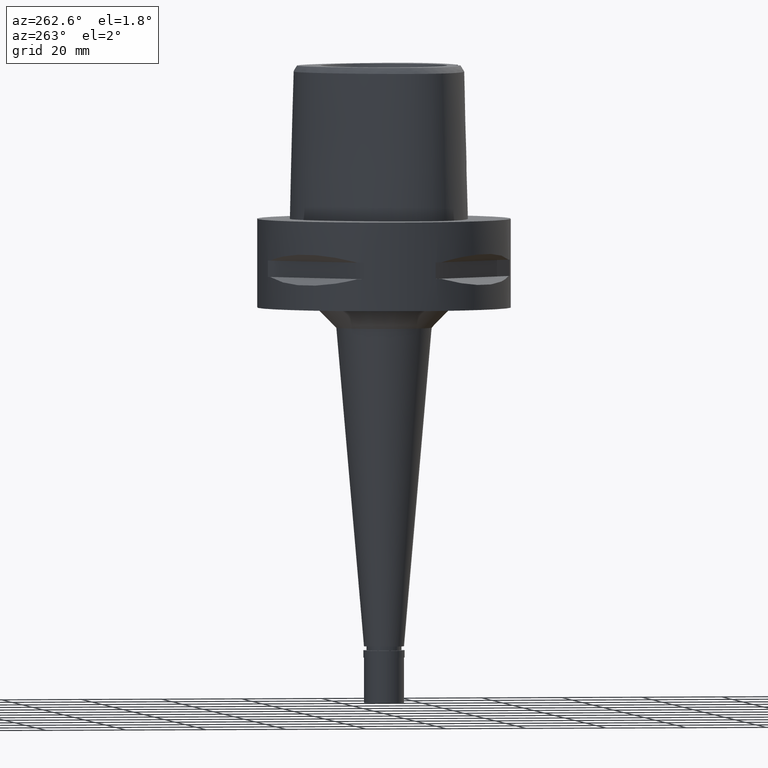
[diagram: clean part render]
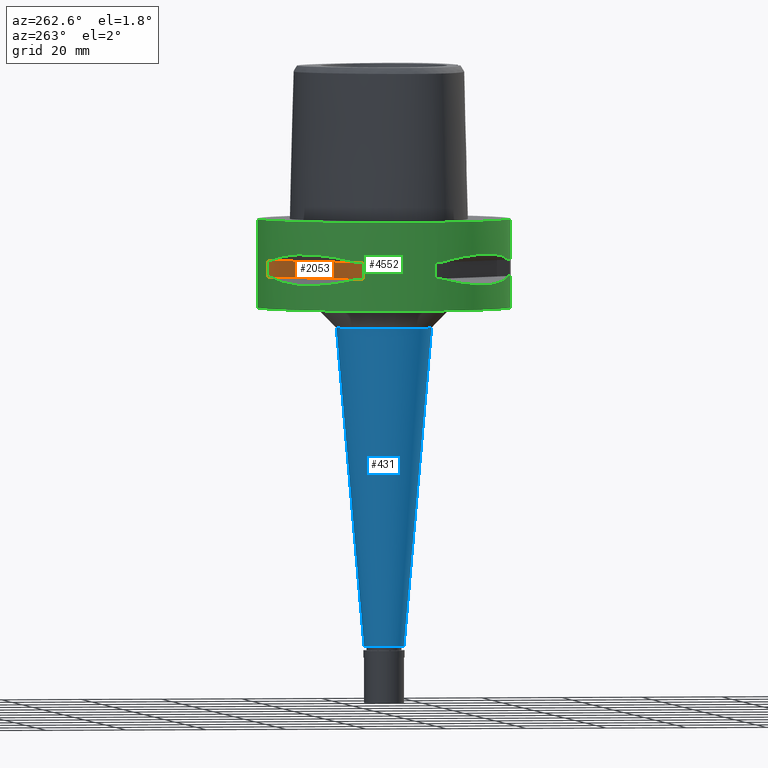
[diagram: same view with three faces highlighted in distinct colors, each labeled with its STEP entity id]
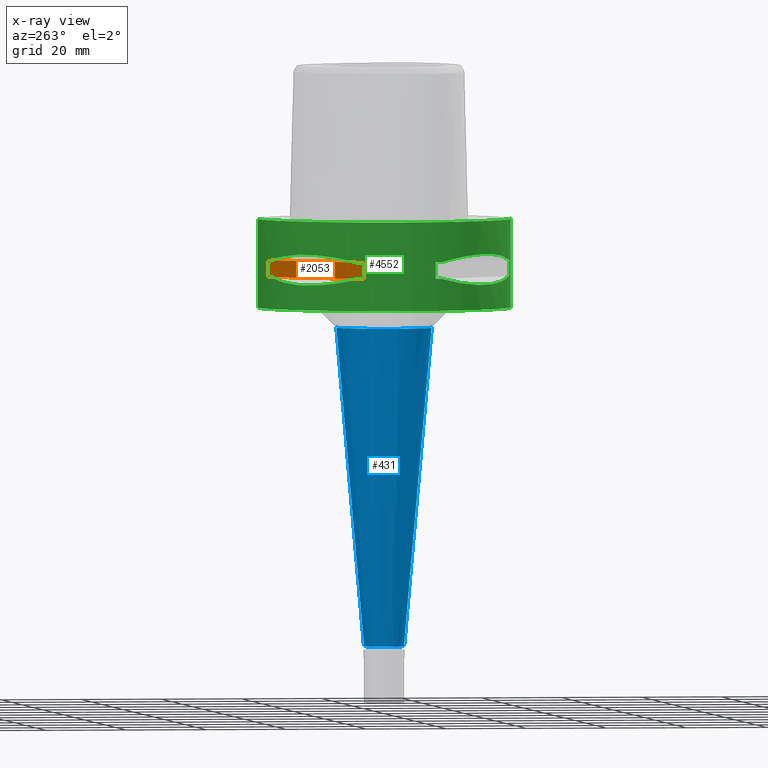
[diagram: x-ray of the same camera — body ghosted, the three highlighted faces saturated]
A machine part, auxiliary view with three faces highlighted in distinct colors.
The next image is the same camera in x-ray (body ghosted, the three faces saturated) — at least one of them is partly hidden behind the body in this view.
Their STEP definitions:

[orange] entity #2053 — the highlighted planar face has unit normal (0.7071, -0.7071, 0).
#38 = CARTESIAN_POINT ( 'NONE',  ( -30.19251670572000279, 8.981198972017999438, -9.950000000000001066 ) ) ;
#59 = LINE ( 'NONE', #38, #2640 ) ;
#178 = AXIS2_PLACEMENT_3D ( 'NONE', #3669, #4728, #4450 ) ;
#492 = VECTOR ( 'NONE', #2361, 1000.000000000000114 ) ;
#566 = VERTEX_POINT ( 'NONE', #1319 ) ;
#843 = CARTESIAN_POINT ( 'NONE',  ( -8.981198972017999438, 30.19251670572000279, -14.05000000000000071 ) ) ;
#1229 = EDGE_CURVE ( 'NONE', #3204, #3739, #59, .T. ) ;
#1319 = CARTESIAN_POINT ( 'NONE',  ( -30.19251670572000279, 8.981198972019999616, -14.05000000000000071 ) ) ;
#1405 = EDGE_LOOP ( 'NONE', ( #3985, #4844, #4096, #2709 ) ) ;
#1409 = LINE ( 'NONE', #2932, #1934 ) ;
#1641 = CARTESIAN_POINT ( 'NONE',  ( -8.981198972019999616, 30.19251670572000279, -9.950000000000001066 ) ) ;
#1743 = FACE_OUTER_BOUND ( 'NONE', #1405, .T. ) ;
#1872 = CARTESIAN_POINT ( 'NONE',  ( -8.981198972017999438, 30.19251670572000279, -9.950000000000001066 ) ) ;
#1934 = VECTOR ( 'NONE', #3288, 1000.000000000000000 ) ;
#1959 = LINE ( 'NONE', #4656, #492 ) ;
#2026 = EDGE_CURVE ( 'NONE', #566, #3011, #1959, .T. ) ;
#2053 = ADVANCED_FACE ( 'NONE', ( #1743 ), #3243, .F. ) ;
#2361 = DIRECTION ( 'NONE',  ( 0.7071067811865474617, 0.7071067811865474617, 0.0000000000000000000 ) ) ;
#2640 = VECTOR ( 'NONE', #3759, 1000.000000000000114 ) ;
#2709 = ORIENTED_EDGE ( 'NONE', *, *, #3097, .T. ) ;
#2744 = CARTESIAN_POINT ( 'NONE',  ( -30.19251670572000279, 8.981198972017999438, -9.950000000000001066 ) ) ;
#2932 = CARTESIAN_POINT ( 'NONE',  ( -30.19251670572000279, 8.981198972017999438, -14.05000000000000071 ) ) ;
#3011 = VERTEX_POINT ( 'NONE', #843 ) ;
#3097 = EDGE_CURVE ( 'NONE', #566, #3204, #1409, .T. ) ;
#3204 = VERTEX_POINT ( 'NONE', #2744 ) ;
#3243 = PLANE ( 'NONE',  #178 ) ;
#3288 = DIRECTION ( 'NONE',  ( 0.0000000000000000000, 0.0000000000000000000, 1.000000000000000000 ) ) ;
#3303 = LINE ( 'NONE', #1872, #4814 ) ;
#3377 = DIRECTION ( 'NONE',  ( 0.0000000000000000000, 0.0000000000000000000, -1.000000000000000000 ) ) ;
#3669 = CARTESIAN_POINT ( 'NONE',  ( -33.72899346260000186, 5.444722215136000187, -9.950000000000001066 ) ) ;
#3739 = VERTEX_POINT ( 'NONE', #1641 ) ;
#3759 = DIRECTION ( 'NONE',  ( 0.7071067811865474617, 0.7071067811865474617, 0.0000000000000000000 ) ) ;
#3985 = ORIENTED_EDGE ( 'NONE', *, *, #1229, .T. ) ;
#4009 = EDGE_CURVE ( 'NONE', #3739, #3011, #3303, .T. ) ;
#4096 = ORIENTED_EDGE ( 'NONE', *, *, #2026, .F. ) ;
#4450 = DIRECTION ( 'NONE',  ( 0.0000000000000000000, 0.0000000000000000000, -1.000000000000000000 ) ) ;
#4656 = CARTESIAN_POINT ( 'NONE',  ( -30.19251670572000279, 8.981198972017999438, -14.05000000000000071 ) ) ;
#4728 = DIRECTION ( 'NONE',  ( 0.7071067811865475727, -0.7071067811865475727, 0.0000000000000000000 ) ) ;
#4814 = VECTOR ( 'NONE', #3377, 1000.000000000000000 ) ;
#4844 = ORIENTED_EDGE ( 'NONE', *, *, #4009, .T. ) ;

[blue] entity #431 — the highlighted conical surface has half-angle 5 deg.
#111 = EDGE_CURVE ( 'NONE', #3089, #2510, #2160, .T. ) ;
#199 = CARTESIAN_POINT ( 'NONE',  ( 0.0000000000000000000, -11.91160441854999874, -27.00000000000000000 ) ) ;
#295 = CARTESIAN_POINT ( 'NONE',  ( 0.0000000000000000000, 0.0000000000000000000, -106.0000000000000000 ) ) ;
#304 = CARTESIAN_POINT ( 'NONE',  ( 0.0000000000000000000, 0.0000000000000000000, -27.00000000000000000 ) ) ;
#370 = DIRECTION ( 'NONE',  ( 0.0000000000000000000, 0.0000000000000000000, 1.000000000000000000 ) ) ;
#431 = ADVANCED_FACE ( 'NONE', ( #3596 ), #2073, .T. ) ;
#526 = CARTESIAN_POINT ( 'NONE',  ( 0.0000000000000000000, 0.0000000000000000000, -66.50000000000000000 ) ) ;
#974 = DIRECTION ( 'NONE',  ( 0.0000000000000000000, 0.08715574274767391716, -0.9961946980917442129 ) ) ;
#1020 = EDGE_CURVE ( 'NONE', #4516, #1181, #1276, .T. ) ;
#1181 = VERTEX_POINT ( 'NONE', #3161 ) ;
#1276 = CIRCLE ( 'NONE', #4495, 11.91160441854999874 ) ;
#1604 = DIRECTION ( 'NONE',  ( 0.0000000000000000000, 1.000000000000000000, 0.0000000000000000000 ) ) ;
#2067 = LINE ( 'NONE', #3995, #4179 ) ;
#2073 = CONICAL_SURFACE ( 'NONE', #4886, 8.455802209273999281, 0.08726646259969973729 ) ;
#2093 = DIRECTION ( 'NONE',  ( 0.0000000000000000000, -0.08715574274767391716, -0.9961946980917442129 ) ) ;
#2118 = EDGE_CURVE ( 'NONE', #1181, #3089, #3301, .T. ) ;
#2158 = CARTESIAN_POINT ( 'NONE',  ( 0.0000000000000000000, 5.000000000000000000, -106.0000000000000000 ) ) ;
#2160 = CIRCLE ( 'NONE', #2958, 5.000000000000000000 ) ;
#2234 = ORIENTED_EDGE ( 'NONE', *, *, #3717, .F. ) ;
#2268 = DIRECTION ( 'NONE',  ( 0.0000000000000000000, 0.0000000000000000000, -1.000000000000000000 ) ) ;
#2510 = VERTEX_POINT ( 'NONE', #2931 ) ;
#2772 = ORIENTED_EDGE ( 'NONE', *, *, #1020, .T. ) ;
#2931 = CARTESIAN_POINT ( 'NONE',  ( 0.0000000000000000000, -5.000000000000000000, -106.0000000000000000 ) ) ;
#2958 = AXIS2_PLACEMENT_3D ( 'NONE', #295, #370, #1604 ) ;
#3089 = VERTEX_POINT ( 'NONE', #2158 ) ;
#3161 = CARTESIAN_POINT ( 'NONE',  ( 0.0000000000000000000, 11.91160441854999874, -27.00000000000000000 ) ) ;
#3190 = ORIENTED_EDGE ( 'NONE', *, *, #111, .T. ) ;
#3290 = VECTOR ( 'NONE', #2093, 1000.000000000000000 ) ;
#3301 = LINE ( 'NONE', #4399, #3290 ) ;
#3596 = FACE_OUTER_BOUND ( 'NONE', #3825, .T. ) ;
#3717 = EDGE_CURVE ( 'NONE', #4516, #2510, #2067, .T. ) ;
#3798 = DIRECTION ( 'NONE',  ( 0.0000000000000000000, -1.000000000000000000, 0.0000000000000000000 ) ) ;
#3825 = EDGE_LOOP ( 'NONE', ( #3190, #2234, #2772, #4121 ) ) ;
#3895 = DIRECTION ( 'NONE',  ( 0.0000000000000000000, 0.0000000000000000000, 1.000000000000000000 ) ) ;
#3995 = CARTESIAN_POINT ( 'NONE',  ( 0.0000000000000000000, -11.91160441854999874, -27.00000000000000000 ) ) ;
#4121 = ORIENTED_EDGE ( 'NONE', *, *, #2118, .T. ) ;
#4179 = VECTOR ( 'NONE', #974, 1000.000000000000000 ) ;
#4399 = CARTESIAN_POINT ( 'NONE',  ( 0.0000000000000000000, 11.91160441854999874, -27.00000000000000000 ) ) ;
#4495 = AXIS2_PLACEMENT_3D ( 'NONE', #304, #2268, #3798 ) ;
#4516 = VERTEX_POINT ( 'NONE', #199 ) ;
#4709 = DIRECTION ( 'NONE',  ( 0.0000000000000000000, 1.000000000000000000, 0.0000000000000000000 ) ) ;
#4886 = AXIS2_PLACEMENT_3D ( 'NONE', #526, #3895, #4709 ) ;

[green] entity #4552 — the highlighted cylindrical surface (partial cylindrical patch) has radius 31.5 mm, axis along (0, 0, -1).
#44 = B_SPLINE_CURVE_WITH_KNOTS ( 'NONE', 3,
 ( #1296, #3969, #2468, #1671, #3569, #3599, #4766, #4001, #2101, #211, #4789, #1725, #608, #1349, #2873, #4410, #2123, #3647, #2177, #2547, #4460, #3307, #4841, #1025 ),
 .UNSPECIFIED., .F., .F.,
 ( 4, 1, 1, 1, 1, 1, 2, 2, 2, 1, 1, 1, 1, 1, 2, 2, 4 ),
 ( 0.0000000000000000000, 0.1249999999999950040, 0.1874999999999924505, 0.2187499999999911737, 0.2343749999999902855, 0.2421874999999899802, 0.2460937499999900080, 0.2499999999999900080, 0.4999999999999917843, 0.6249999999999925615, 0.6874999999999925615, 0.7187499999999924505, 0.7343749999999926725, 0.7421874999999927836, 0.7460937499999928946, 0.7499999999999931166, 1.000000000000000000 ),
 .UNSPECIFIED. ) ;
#55 = EDGE_CURVE ( 'NONE', #706, #1981, #1108, .T. ) ;
#62 = ORIENTED_EDGE ( 'NONE', *, *, #1883, .T. ) ;
#95 = DIRECTION ( 'NONE',  ( 0.0000000000000000000, -1.000000000000000000, 0.0000000000000000000 ) ) ;
#119 = CARTESIAN_POINT ( 'NONE',  ( -18.59229662067887290, 25.43927894889657182, -8.371338736651580348 ) ) ;
#142 = CIRCLE ( 'NONE', #1738, 31.50000000000000711 ) ;
#165 = DIRECTION ( 'NONE',  ( -0.2851174276831918153, 0.9584925938322735872, 0.0000000000000000000 ) ) ;
#172 = CARTESIAN_POINT ( 'NONE',  ( -23.89673728051778312, 20.65093790439090427, -8.160641950982711279 ) ) ;
#180 = CARTESIAN_POINT ( 'NONE',  ( 0.0000000000000000000, 1.295860010517999870E-14, -14.05000000000000071 ) ) ;
#185 = CARTESIAN_POINT ( 'NONE',  ( -26.01217882833174500, -17.76952662674572281, -8.473347783733409244 ) ) ;
#211 = CARTESIAN_POINT ( 'NONE',  ( -16.89910283486545950, 26.58330558444438907, -15.40446471307224030 ) ) ;
#255 = DIRECTION ( 'NONE',  ( -0.9584925938322735872, -0.2851174276831918153, 0.0000000000000000000 ) ) ;
#268 = CARTESIAN_POINT ( 'NONE',  ( 0.0000000000000000000, 1.295860010517999870E-14, -9.950000000000001066 ) ) ;
#319 = CARTESIAN_POINT ( 'NONE',  ( -14.89252659053665440, -27.86285265927818600, -15.10765629750852135 ) ) ;
#391 = EDGE_CURVE ( 'NONE', #2687, #2218, #1761, .T. ) ;
#432 = CARTESIAN_POINT ( 'NONE',  ( 0.0000000000000000000, 1.295860010517999870E-14, -14.05000000000000071 ) ) ;
#444 = DIRECTION ( 'NONE',  ( 0.0000000000000000000, 0.0000000000000000000, -1.000000000000000000 ) ) ;
#483 = AXIS2_PLACEMENT_3D ( 'NONE', #268, #2553, #3359 ) ;
#490 = ORIENTED_EDGE ( 'NONE', *, *, #2955, .T. ) ;
#512 = VERTEX_POINT ( 'NONE', #3966 ) ;
#517 = ORIENTED_EDGE ( 'NONE', *, *, #3293, .F. ) ;
#520 = VERTEX_POINT ( 'NONE', #1243 ) ;
#554 = CARTESIAN_POINT ( 'NONE',  ( -13.25636937906713442, -28.62019653467846680, -9.251117744577344482 ) ) ;
#566 = VERTEX_POINT ( 'NONE', #1319 ) ;
#571 = FACE_BOUND ( 'NONE', #2273, .T. ) ;
#584 = LINE ( 'NONE', #2793, #2571 ) ;
#598 = CARTESIAN_POINT ( 'NONE',  ( 0.0000000000000000000, 1.295860010517999870E-14, 5.814999999999999503 ) ) ;
#608 = CARTESIAN_POINT ( 'NONE',  ( -23.08532645888017854, 21.46242677077873751, -15.83938991065184076 ) ) ;
#625 = CARTESIAN_POINT ( 'NONE',  ( 0.0000000000000000000, 1.295860010517999870E-14, -9.950000000000001066 ) ) ;
#630 = CARTESIAN_POINT ( 'NONE',  ( -16.03138450079663002, -27.11872488588888430, -8.731195798918143680 ) ) ;
#631 = EDGE_CURVE ( 'NONE', #3789, #3204, #3678, .T. ) ;
#654 = VECTOR ( 'NONE', #444, 1000.000000000000000 ) ;
#671 = CARTESIAN_POINT ( 'NONE',  ( -16.98999780422095540, -26.52527364208602734, -15.41788098766330783 ) ) ;
#706 = VERTEX_POINT ( 'NONE', #4162 ) ;
#792 = ORIENTED_EDGE ( 'NONE', *, *, #3097, .F. ) ;
#843 = CARTESIAN_POINT ( 'NONE',  ( -8.981198972017999438, 30.19251670572000279, -14.05000000000000071 ) ) ;
#890 = CARTESIAN_POINT ( 'NONE',  ( -29.71690375017999841, 10.44775724750000023, -9.949999999998999201 ) ) ;
#899 = CARTESIAN_POINT ( 'NONE',  ( -18.86897208070082144, -25.32725744469107809, -8.304119040671400498 ) ) ;
#901 = EDGE_CURVE ( 'NONE', #1394, #512, #2246, .T. ) ;
#910 = ORIENTED_EDGE ( 'NONE', *, *, #2670, .T. ) ;
#914 = EDGE_LOOP ( 'NONE', ( #2917, #792, #2797, #2047, #910, #1856, #3668, #2969 ) ) ;
#941 = CARTESIAN_POINT ( 'NONE',  ( -20.18579225689817847, 24.23018836742653903, -8.214406030204504106 ) ) ;
#953 = CARTESIAN_POINT ( 'NONE',  ( -26.52527364208554062, -16.98999780422374073, -8.582119012334473496 ) ) ;
#967 = CARTESIAN_POINT ( 'NONE',  ( -26.58330558444476921, 16.89910283486714704, -8.595535286925606755 ) ) ;
#968 = AXIS2_PLACEMENT_3D ( 'NONE', #625, #3773, #255 ) ;
#969 = CIRCLE ( 'NONE', #1443, 31.50000000000000000 ) ;
#973 = VECTOR ( 'NONE', #1514, 1000.000000000000000 ) ;
#980 = CARTESIAN_POINT ( 'NONE',  ( -25.43927894889004548, -18.59229662069481037, -8.371338736647741641 ) ) ;
#989 = VERTEX_POINT ( 'NONE', #3020 ) ;
#1004 = CARTESIAN_POINT ( 'NONE',  ( -11.58970337496160852, -29.31542262584106595, -9.647706428324706707 ) ) ;
#1025 = CARTESIAN_POINT ( 'NONE',  ( -29.71690375017999841, 10.44775724750000023, -14.05000000000000071 ) ) ;
#1108 = B_SPLINE_CURVE_WITH_KNOTS ( 'NONE', 3,
 ( #3365, #1483, #4876, #4445, #1792, #1864, #2632, #3319, #4925, #3009, #1460, #4852, #1411, #4113, #1812, #2934, #2210, #3340, #1389, #671, #3733, #319, #4831, #2988 ),
 .UNSPECIFIED., .F., .F.,
 ( 4, 1, 1, 1, 1, 1, 2, 2, 2, 1, 1, 1, 1, 1, 2, 2, 4 ),
 ( 0.0000000000000000000, 0.1250000000000055511, 0.1875000000000083267, 0.2187500000000097977, 0.2343750000000106304, 0.2421875000000108247, 0.2460937500000108524, 0.2500000000000108802, 0.5000000000000087708, 0.6250000000000075495, 0.6875000000000071054, 0.7187500000000067724, 0.7343750000000066613, 0.7421875000000065503, 0.7460937500000062172, 0.7500000000000059952, 1.000000000000000000 ),
 .UNSPECIFIED. ) ;
#1144 = DIRECTION ( 'NONE',  ( 0.0000000000000000000, 0.0000000000000000000, -1.000000000000000000 ) ) ;
#1163 = DIRECTION ( 'NONE',  ( 0.0000000000000000000, -1.000000000000000000, 0.0000000000000000000 ) ) ;
#1214 = CARTESIAN_POINT ( 'NONE',  ( 0.0000000000000000000, 1.295860010517999870E-14, 0.0000000000000000000 ) ) ;
#1235 = CARTESIAN_POINT ( 'NONE',  ( -14.89252659059299688, 27.86285265925913279, -8.892343702474967415 ) ) ;
#1243 = CARTESIAN_POINT ( 'NONE',  ( 0.0000000000000000000, 31.50000000000000000, 0.0000000000000000000 ) ) ;
#1259 = CARTESIAN_POINT ( 'NONE',  ( -28.62019653469816305, 13.25636937901108503, -9.251117744592180614 ) ) ;
#1260 = ORIENTED_EDGE ( 'NONE', *, *, #4192, .T. ) ;
#1269 = CARTESIAN_POINT ( 'NONE',  ( -26.48642424310302701, -17.05047092244751283, -8.573291165920753798 ) ) ;
#1296 = CARTESIAN_POINT ( 'NONE',  ( -10.44775724750000023, 29.71690375017999841, -14.05000000000000071 ) ) ;
#1319 = CARTESIAN_POINT ( 'NONE',  ( -30.19251670572000279, 8.981198972019999616, -14.05000000000000071 ) ) ;
#1321 = CARTESIAN_POINT ( 'NONE',  ( -16.70616724746269810, -26.70521063584483201, -8.624533381820137734 ) ) ;
#1349 = CARTESIAN_POINT ( 'NONE',  ( -24.23018836745279714, 20.18579225685798306, -15.78559396978850415 ) ) ;
#1389 = CARTESIAN_POINT ( 'NONE',  ( -17.05047092244293694, -26.48642424310493837, -15.42670883407686588 ) ) ;
#1394 = VERTEX_POINT ( 'NONE', #1776 ) ;
#1409 = LINE ( 'NONE', #2932, #1934 ) ;
#1411 = CARTESIAN_POINT ( 'NONE',  ( -21.46242677078364025, -23.08532645888299939, -15.83938991065501867 ) ) ;
#1443 = AXIS2_PLACEMENT_3D ( 'NONE', #1214, #2385, #1163 ) ;
#1460 = CARTESIAN_POINT ( 'NONE',  ( -25.32725744469575702, -18.86897208070564247, -15.69588095933118943 ) ) ;
#1483 = CARTESIAN_POINT ( 'NONE',  ( -29.31542262584746794, -11.58970337494326941, -14.35229357166913999 ) ) ;
#1493 = CARTESIAN_POINT ( 'NONE',  ( 0.0000000000000000000, 1.295860010517999870E-14, -22.00000000000000000 ) ) ;
#1514 = DIRECTION ( 'NONE',  ( 0.0000000000000000000, 0.0000000000000000000, -1.000000000000000000 ) ) ;
#1527 = CIRCLE ( 'NONE', #2167, 31.50000000000000000 ) ;
#1548 = DIRECTION ( 'NONE',  ( -0.2851174276831918153, -0.9584925938322735872, 0.0000000000000000000 ) ) ;
#1634 = ORIENTED_EDGE ( 'NONE', *, *, #391, .T. ) ;
#1637 = CARTESIAN_POINT ( 'NONE',  ( -17.14106442935275254, 26.42800887047274827, -8.560154497612680657 ) ) ;
#1641 = CARTESIAN_POINT ( 'NONE',  ( -8.981198972019999616, 30.19251670572000279, -9.950000000000001066 ) ) ;
#1647 = CARTESIAN_POINT ( 'NONE',  ( -20.65093790440084831, -23.89673728049350743, -8.160641950988564375 ) ) ;
#1671 = CARTESIAN_POINT ( 'NONE',  ( -15.11986997308662595, 27.64634172018752523, -15.11207862403231239 ) ) ;
#1695 = DIRECTION ( 'NONE',  ( 0.0000000000000000000, 0.0000000000000000000, -1.000000000000000000 ) ) ;
#1712 = ORIENTED_EDGE ( 'NONE', *, *, #4699, .T. ) ;
#1725 = CARTESIAN_POINT ( 'NONE',  ( -20.65093790435807364, 23.89673728056094859, -15.83935804902020550 ) ) ;
#1738 = AXIS2_PLACEMENT_3D ( 'NONE', #4673, #3930, #4718 ) ;
#1752 = CARTESIAN_POINT ( 'NONE',  ( -23.08532645886081980, -21.46242677081444228, -8.160610089340176287 ) ) ;
#1761 = CIRCLE ( 'NONE', #483, 31.50000000000000711 ) ;
#1776 = CARTESIAN_POINT ( 'NONE',  ( -30.19251670572000279, -8.981198972019999616, -9.950000000000001066 ) ) ;
#1792 = CARTESIAN_POINT ( 'NONE',  ( -27.11872488589304453, -16.03138450078185429, -15.26880420107623237 ) ) ;
#1812 = CARTESIAN_POINT ( 'NONE',  ( -18.59229662065495958, -25.43927894891979946, -15.62866126334684580 ) ) ;
#1828 = EDGE_CURVE ( 'NONE', #2447, #2935, #1527, .T. ) ;
#1842 = VERTEX_POINT ( 'NONE', #1942 ) ;
#1856 = ORIENTED_EDGE ( 'NONE', *, *, #4009, .F. ) ;
#1864 = CARTESIAN_POINT ( 'NONE',  ( -26.84474411198783628, -16.48208282228858224, -15.34094883777952667 ) ) ;
#1865 = ORIENTED_EDGE ( 'NONE', *, *, #3295, .F. ) ;
#1872 = CARTESIAN_POINT ( 'NONE',  ( -8.981198972017999438, 30.19251670572000279, -9.950000000000001066 ) ) ;
#1883 = EDGE_CURVE ( 'NONE', #989, #520, #969, .T. ) ;
#1889 = ORIENTED_EDGE ( 'NONE', *, *, #1828, .T. ) ;
#1916 = CARTESIAN_POINT ( 'NONE',  ( 0.0000000000000000000, 31.50000000000000000, 0.0000000000000000000 ) ) ;
#1934 = VECTOR ( 'NONE', #3288, 1000.000000000000000 ) ;
#1942 = CARTESIAN_POINT ( 'NONE',  ( -29.71690375017999841, -10.44775724750000023, -9.949999999998999201 ) ) ;
#1965 = AXIS2_PLACEMENT_3D ( 'NONE', #2804, #2751, #165 ) ;
#1981 = VERTEX_POINT ( 'NONE', #2758 ) ;
#2047 = ORIENTED_EDGE ( 'NONE', *, *, #3353, .F. ) ;
#2062 = EDGE_LOOP ( 'NONE', ( #1889, #3000, #62, #3162 ) ) ;
#2091 = CYLINDRICAL_SURFACE ( 'NONE', #3419, 31.50000000000000000 ) ;
#2101 = CARTESIAN_POINT ( 'NONE',  ( -16.86571563436579169, 26.60451452154777030, -15.39949295785988426 ) ) ;
#2117 = DIRECTION ( 'NONE',  ( -0.9584925938322735872, 0.2851174276831918153, 0.0000000000000000000 ) ) ;
#2123 = CARTESIAN_POINT ( 'NONE',  ( -26.29071741523646111, 17.35163608579689409, -15.46976201925398087 ) ) ;
#2150 = DIRECTION ( 'NONE',  ( 0.0000000000000000000, 0.0000000000000000000, 1.000000000000000000 ) ) ;
#2167 = AXIS2_PLACEMENT_3D ( 'NONE', #1493, #2648, #4177 ) ;
#2177 = CARTESIAN_POINT ( 'NONE',  ( -26.48642424310458665, 17.05047092244234008, -15.42670883407647509 ) ) ;
#2210 = CARTESIAN_POINT ( 'NONE',  ( -17.35163608579889072, -26.29071741523761929, -15.46976201925527761 ) ) ;
#2218 = VERTEX_POINT ( 'NONE', #2895 ) ;
#2246 = LINE ( 'NONE', #2647, #4726 ) ;
#2267 = LINE ( 'NONE', #1916, #654 ) ;
#2271 = EDGE_CURVE ( 'NONE', #989, #2935, #2970, .T. ) ;
#2273 = EDGE_LOOP ( 'NONE', ( #1634, #517, #490, #3660, #1712, #2576, #1260, #1865 ) ) ;
#2299 = DIRECTION ( 'NONE',  ( 0.0000000000000000000, 0.0000000000000000000, -1.000000000000000000 ) ) ;
#2301 = B_SPLINE_CURVE_WITH_KNOTS ( 'NONE', 3,
 ( #3623, #1004, #554, #4047, #630, #4383, #1321, #4711, #3677, #4331, #899, #1647, #1752, #3173, #980, #185, #3227, #3278, #1269, #953, #2497, #2822, #2420, #4026 ),
 .UNSPECIFIED., .F., .F.,
 ( 4, 1, 1, 1, 1, 1, 2, 2, 2, 1, 1, 1, 1, 1, 2, 2, 4 ),
 ( 0.0000000000000000000, 0.1250000000000015266, 0.1875000000000022760, 0.2187500000000025813, 0.2343750000000025813, 0.2421875000000026923, 0.2460937500000026368, 0.2500000000000026090, 0.4999999999999997780, 0.6249999999999986677, 0.6874999999999982236, 0.7187499999999980016, 0.7343749999999980016, 0.7421874999999980016, 0.7460937499999977796, 0.7499999999999975575, 1.000000000000000000 ),
 .UNSPECIFIED. ) ;
#2344 = DIRECTION ( 'NONE',  ( -0.3316748332540863653, 0.9433937698468619626, 0.0000000000000000000 ) ) ;
#2381 = CARTESIAN_POINT ( 'NONE',  ( -25.32725744471396112, 18.86897208069228071, -8.304119040665543849 ) ) ;
#2385 = DIRECTION ( 'NONE',  ( 0.0000000000000000000, 0.0000000000000000000, -1.000000000000000000 ) ) ;
#2411 = CARTESIAN_POINT ( 'NONE',  ( -12.73197616790216635, 28.91382665368218952, -9.345326382454333114 ) ) ;
#2420 = CARTESIAN_POINT ( 'NONE',  ( -28.91382665368931626, -12.73197616788186792, -9.345326382459711922 ) ) ;
#2447 = VERTEX_POINT ( 'NONE', #4119 ) ;
#2459 = FACE_OUTER_BOUND ( 'NONE', #2062, .T. ) ;
#2468 = CARTESIAN_POINT ( 'NONE',  ( -13.25636937902232404, 28.62019653469382163, -14.74888225540932751 ) ) ;
#2477 = CIRCLE ( 'NONE', #968, 31.50000000000001776 ) ;
#2483 = CIRCLE ( 'NONE', #4579, 31.50000000000000711 ) ;
#2497 = CARTESIAN_POINT ( 'NONE',  ( -26.54368690921742413, -16.96123479565023828, -8.586344276584748414 ) ) ;
#2547 = CARTESIAN_POINT ( 'NONE',  ( -26.52527364208584615, 16.98999780422065342, -15.41788098766309467 ) ) ;
#2551 = VERTEX_POINT ( 'NONE', #4520 ) ;
#2553 = DIRECTION ( 'NONE',  ( 0.0000000000000000000, 0.0000000000000000000, 1.000000000000000000 ) ) ;
#2571 = VECTOR ( 'NONE', #2150, 1000.000000000000000 ) ;
#2576 = ORIENTED_EDGE ( 'NONE', *, *, #901, .F. ) ;
#2632 = CARTESIAN_POINT ( 'NONE',  ( -26.70521063584532229, -16.70616724745790549, -15.37546661817682292 ) ) ;
#2647 = CARTESIAN_POINT ( 'NONE',  ( -30.19251670572000279, -8.981198972017999438, -9.950000000000001066 ) ) ;
#2648 = DIRECTION ( 'NONE',  ( 0.0000000000000000000, 0.0000000000000000000, 1.000000000000000000 ) ) ;
#2667 = CARTESIAN_POINT ( 'NONE',  ( 0.0000000000000000000, -31.50000000000000000, 0.0000000000000000000 ) ) ;
#2670 = EDGE_CURVE ( 'NONE', #2861, #3011, #2483, .T. ) ;
#2687 = VERTEX_POINT ( 'NONE', #3057 ) ;
#2744 = CARTESIAN_POINT ( 'NONE',  ( -30.19251670572000279, 8.981198972017999438, -9.950000000000001066 ) ) ;
#2751 = DIRECTION ( 'NONE',  ( 0.0000000000000000000, 0.0000000000000000000, 1.000000000000000000 ) ) ;
#2756 = CARTESIAN_POINT ( 'NONE',  ( -17.35163608580701222, 26.29071741523101480, -8.530237980742814585 ) ) ;
#2758 = CARTESIAN_POINT ( 'NONE',  ( -10.44775724750000023, -29.71690375017999841, -14.05000000000000071 ) ) ;
#2759 = B_SPLINE_CURVE_WITH_KNOTS ( 'NONE', 3,
 ( #890, #3164, #1259, #3189, #3537, #4778, #3613, #4700, #2781, #967, #2381, #172, #4287, #941, #119, #3241, #2756, #1637, #4317, #4017, #2837, #1235, #2411, #3935 ),
 .UNSPECIFIED., .F., .F.,
 ( 4, 1, 1, 1, 1, 1, 2, 2, 2, 1, 1, 1, 1, 1, 2, 2, 4 ),
 ( 0.0000000000000000000, 0.1250000000000042466, 0.1875000000000063838, 0.2187500000000076050, 0.2343750000000082712, 0.2421875000000086875, 0.2460937500000088818, 0.2500000000000091038, 0.4999999999999984457, 0.6249999999999930056, 0.6874999999999904521, 0.7187499999999892308, 0.7343749999999887867, 0.7421874999999884537, 0.7460937499999882316, 0.7499999999999880096, 1.000000000000000000 ),
 .UNSPECIFIED. ) ;
#2778 = VERTEX_POINT ( 'NONE', #4298 ) ;
#2781 = CARTESIAN_POINT ( 'NONE',  ( -26.60451452154882190, 16.86571563436634946, -8.600507042138151093 ) ) ;
#2792 = CARTESIAN_POINT ( 'NONE',  ( -10.44775724750000023, 29.71690375017999841, -14.05000000000000071 ) ) ;
#2793 = CARTESIAN_POINT ( 'NONE',  ( -8.981198972017999438, -30.19251670572000279, -14.05000000000000071 ) ) ;
#2797 = ORIENTED_EDGE ( 'NONE', *, *, #3801, .T. ) ;
#2804 = CARTESIAN_POINT ( 'NONE',  ( 0.0000000000000000000, 1.295860010517999870E-14, -9.950000000000001066 ) ) ;
#2817 = CARTESIAN_POINT ( 'NONE',  ( -29.71690375017999841, 10.44775724750000023, -9.949999999998999201 ) ) ;
#2822 = CARTESIAN_POINT ( 'NONE',  ( -27.86285265926625243, -14.89252659057268069, -8.892343702480344447 ) ) ;
#2837 = CARTESIAN_POINT ( 'NONE',  ( -16.96123479564992564, 26.54368690921753426, -8.586344276584835455 ) ) ;
#2861 = VERTEX_POINT ( 'NONE', #2792 ) ;
#2873 = CARTESIAN_POINT ( 'NONE',  ( -25.43927894891607622, 18.59229662064853983, -15.62866126334269623 ) ) ;
#2895 = CARTESIAN_POINT ( 'NONE',  ( -8.981198972017999438, -30.19251670572000279, -9.950000000000001066 ) ) ;
#2917 = ORIENTED_EDGE ( 'NONE', *, *, #631, .T. ) ;
#2932 = CARTESIAN_POINT ( 'NONE',  ( -30.19251670572000279, 8.981198972017999438, -14.05000000000000071 ) ) ;
#2934 = CARTESIAN_POINT ( 'NONE',  ( -17.76952662672209371, -26.01217882834868433, -15.52665221626257264 ) ) ;
#2935 = VERTEX_POINT ( 'NONE', #3724 ) ;
#2955 = EDGE_CURVE ( 'NONE', #2551, #1981, #3771, .T. ) ;
#2969 = ORIENTED_EDGE ( 'NONE', *, *, #4489, .F. ) ;
#2970 = LINE ( 'NONE', #2667, #973 ) ;
#2988 = CARTESIAN_POINT ( 'NONE',  ( -10.44775724750000023, -29.71690375017999841, -14.05000000000000071 ) ) ;
#3000 = ORIENTED_EDGE ( 'NONE', *, *, #2271, .F. ) ;
#3009 = CARTESIAN_POINT ( 'NONE',  ( -26.58330558444411906, -16.89910283486596754, -15.40446471307235754 ) ) ;
#3011 = VERTEX_POINT ( 'NONE', #843 ) ;
#3020 = CARTESIAN_POINT ( 'NONE',  ( 0.0000000000000000000, -31.50000000000000000, 0.0000000000000000000 ) ) ;
#3057 = CARTESIAN_POINT ( 'NONE',  ( -10.44775724750000023, -29.71690375017999841, -9.949999999998999201 ) ) ;
#3097 = EDGE_CURVE ( 'NONE', #566, #3204, #1409, .T. ) ;
#3144 = CARTESIAN_POINT ( 'NONE',  ( -10.44775724750000023, 29.71690375017999841, -9.949999999998999201 ) ) ;
#3162 = ORIENTED_EDGE ( 'NONE', *, *, #4326, .T. ) ;
#3164 = CARTESIAN_POINT ( 'NONE',  ( -29.31542262585232450, 11.58970337492957903, -9.647706428333181705 ) ) ;
#3173 = CARTESIAN_POINT ( 'NONE',  ( -24.23018836741784199, -20.18579225691943080, -8.214406030199386421 ) ) ;
#3189 = CARTESIAN_POINT ( 'NONE',  ( -27.64634172019115255, 15.11986997307859681, -8.887921375968176108 ) ) ;
#3204 = VERTEX_POINT ( 'NONE', #2744 ) ;
#3227 = CARTESIAN_POINT ( 'NONE',  ( -26.29071741522897554, -17.35163608581197892, -8.530237980741613768 ) ) ;
#3241 = CARTESIAN_POINT ( 'NONE',  ( -17.76952662673642891, 26.01217882833554285, -8.473347783735649230 ) ) ;
#3278 = CARTESIAN_POINT ( 'NONE',  ( -26.42800887047169311, -17.14106442935532471, -8.560154497612058933 ) ) ;
#3279 = AXIS2_PLACEMENT_3D ( 'NONE', #3504, #3411, #4597 ) ;
#3288 = DIRECTION ( 'NONE',  ( 0.0000000000000000000, 0.0000000000000000000, 1.000000000000000000 ) ) ;
#3293 = EDGE_CURVE ( 'NONE', #2551, #2218, #584, .T. ) ;
#3295 = EDGE_CURVE ( 'NONE', #2687, #1842, #2301, .T. ) ;
#3303 = LINE ( 'NONE', #1872, #4814 ) ;
#3307 = CARTESIAN_POINT ( 'NONE',  ( -27.86285265926284893, 14.89252659058025685, -15.10765629752004813 ) ) ;
#3319 = CARTESIAN_POINT ( 'NONE',  ( -26.64486562695783789, -16.80193241490531975, -15.38992683735687272 ) ) ;
#3340 = CARTESIAN_POINT ( 'NONE',  ( -17.14106442934810204, -26.42800887047570058, -15.43984550238532982 ) ) ;
#3353 = EDGE_CURVE ( 'NONE', #2861, #2778, #44, .T. ) ;
#3359 = DIRECTION ( 'NONE',  ( -0.3316748332540863653, -0.9433937698468619626, 0.0000000000000000000 ) ) ;
#3365 = CARTESIAN_POINT ( 'NONE',  ( -29.71690375017999841, -10.44775724750000023, -14.05000000000000071 ) ) ;
#3377 = DIRECTION ( 'NONE',  ( 0.0000000000000000000, 0.0000000000000000000, -1.000000000000000000 ) ) ;
#3411 = DIRECTION ( 'NONE',  ( 0.0000000000000000000, 0.0000000000000000000, 1.000000000000000000 ) ) ;
#3419 = AXIS2_PLACEMENT_3D ( 'NONE', #598, #4397, #95 ) ;
#3504 = CARTESIAN_POINT ( 'NONE',  ( 0.0000000000000000000, 1.295860010517999870E-14, -9.950000000000001066 ) ) ;
#3537 = CARTESIAN_POINT ( 'NONE',  ( -27.11872488589751384, 16.03138450077211274, -8.731195798924636264 ) ) ;
#3569 = CARTESIAN_POINT ( 'NONE',  ( -16.03138450077636534, 27.11872488589498786, -15.26880420107476333 ) ) ;
#3599 = CARTESIAN_POINT ( 'NONE',  ( -16.48208282228564769, 26.84474411198887012, -15.34094883777873619 ) ) ;
#3613 = CARTESIAN_POINT ( 'NONE',  ( -26.70521063584724075, 16.70616724745591952, -8.624533381821933631 ) ) ;
#3623 = CARTESIAN_POINT ( 'NONE',  ( -10.44775724750000023, -29.71690375017999841, -9.949999999998999201 ) ) ;
#3647 = CARTESIAN_POINT ( 'NONE',  ( -26.42800887047508240, 17.14106442934706820, -15.43984550238465836 ) ) ;
#3660 = ORIENTED_EDGE ( 'NONE', *, *, #55, .F. ) ;
#3666 = CIRCLE ( 'NONE', #1965, 31.50000000000001776 ) ;
#3668 = ORIENTED_EDGE ( 'NONE', *, *, #4737, .T. ) ;
#3677 = CARTESIAN_POINT ( 'NONE',  ( -16.86571563436833543, -26.60451452154811136, -8.600507042137621738 ) ) ;
#3678 = CIRCLE ( 'NONE', #3279, 31.50000000000000711 ) ;
#3724 = CARTESIAN_POINT ( 'NONE',  ( 0.0000000000000000000, -31.50000000000000000, -22.00000000000000000 ) ) ;
#3733 = CARTESIAN_POINT ( 'NONE',  ( -16.96123479564984748, -26.54368690921626950, -15.41365572341332424 ) ) ;
#3739 = VERTEX_POINT ( 'NONE', #1641 ) ;
#3771 = CIRCLE ( 'NONE', #4174, 31.50000000000001776 ) ;
#3773 = DIRECTION ( 'NONE',  ( 0.0000000000000000000, 0.0000000000000000000, 1.000000000000000000 ) ) ;
#3789 = VERTEX_POINT ( 'NONE', #2817 ) ;
#3801 = EDGE_CURVE ( 'NONE', #566, #2778, #4014, .T. ) ;
#3913 = AXIS2_PLACEMENT_3D ( 'NONE', #180, #1695, #2117 ) ;
#3930 = DIRECTION ( 'NONE',  ( 0.0000000000000000000, 0.0000000000000000000, -1.000000000000000000 ) ) ;
#3935 = CARTESIAN_POINT ( 'NONE',  ( -10.44775724750000023, 29.71690375017999841, -9.949999999998999201 ) ) ;
#3966 = CARTESIAN_POINT ( 'NONE',  ( -30.19251670572000279, -8.981198972017999438, -14.05000000000000071 ) ) ;
#3969 = CARTESIAN_POINT ( 'NONE',  ( -11.58970337493613378, 29.31542262584994418, -14.35229357166721265 ) ) ;
#3989 = FACE_BOUND ( 'NONE', #914, .T. ) ;
#4001 = CARTESIAN_POINT ( 'NONE',  ( -16.80193241490443157, 26.64486562695815053, -15.38992683735661515 ) ) ;
#4009 = EDGE_CURVE ( 'NONE', #3739, #3011, #3303, .T. ) ;
#4014 = CIRCLE ( 'NONE', #3913, 31.50000000000001776 ) ;
#4017 = CARTESIAN_POINT ( 'NONE',  ( -16.98999780422298400, 26.52527364208583904, -8.582119012334649355 ) ) ;
#4026 = CARTESIAN_POINT ( 'NONE',  ( -29.71690375017999841, -10.44775724750000023, -9.949999999998999201 ) ) ;
#4047 = CARTESIAN_POINT ( 'NONE',  ( -15.11986997312062897, -27.64634172017636615, -8.887921375957052561 ) ) ;
#4113 = CARTESIAN_POINT ( 'NONE',  ( -20.18579225686653444, -24.23018836745773541, -15.78559396979401974 ) ) ;
#4119 = CARTESIAN_POINT ( 'NONE',  ( 0.0000000000000000000, 31.50000000000000000, -22.00000000000000000 ) ) ;
#4162 = CARTESIAN_POINT ( 'NONE',  ( -29.71690375017999841, -10.44775724750000023, -14.05000000000000071 ) ) ;
#4174 = AXIS2_PLACEMENT_3D ( 'NONE', #4537, #1144, #1548 ) ;
#4177 = DIRECTION ( 'NONE',  ( 0.0000000000000000000, 1.000000000000000000, 0.0000000000000000000 ) ) ;
#4192 = EDGE_CURVE ( 'NONE', #1394, #1842, #2477, .T. ) ;
#4287 = CARTESIAN_POINT ( 'NONE',  ( -21.46242677080229910, 23.08532645886579004, -8.160610089343105500 ) ) ;
#4298 = CARTESIAN_POINT ( 'NONE',  ( -29.71690375017999841, 10.44775724750000023, -14.05000000000000071 ) ) ;
#4317 = CARTESIAN_POINT ( 'NONE',  ( -17.05047092244602069, 26.48642424310363452, -8.573291165921110846 ) ) ;
#4326 = EDGE_CURVE ( 'NONE', #520, #2447, #2267, .T. ) ;
#4331 = CARTESIAN_POINT ( 'NONE',  ( -16.89910283486701204, -26.58330558444512448, -8.595535286925516161 ) ) ;
#4383 = CARTESIAN_POINT ( 'NONE',  ( -16.48208282229695598, -26.84474411198603505, -8.659051162216503172 ) ) ;
#4397 = DIRECTION ( 'NONE',  ( 0.0000000000000000000, 0.0000000000000000000, -1.000000000000000000 ) ) ;
#4410 = CARTESIAN_POINT ( 'NONE',  ( -26.01217882834653139, 17.76952662671834915, -15.52665221626015501 ) ) ;
#4445 = CARTESIAN_POINT ( 'NONE',  ( -27.64634172018421410, -15.11986997309601577, -15.11207862403482238 ) ) ;
#4460 = CARTESIAN_POINT ( 'NONE',  ( -26.54368690921649687, 16.96123479564916892, -15.41365572341313239 ) ) ;
#4489 = EDGE_CURVE ( 'NONE', #3789, #4564, #2759, .T. ) ;
#4520 = CARTESIAN_POINT ( 'NONE',  ( -8.981198972019999616, -30.19251670572000279, -14.05000000000000071 ) ) ;
#4537 = CARTESIAN_POINT ( 'NONE',  ( 0.0000000000000000000, 1.295860010517999870E-14, -14.05000000000000071 ) ) ;
#4552 = ADVANCED_FACE ( 'NONE', ( #2459, #3989, #571 ), #2091, .T. ) ;
#4564 = VERTEX_POINT ( 'NONE', #3144 ) ;
#4579 = AXIS2_PLACEMENT_3D ( 'NONE', #432, #2299, #2344 ) ;
#4597 = DIRECTION ( 'NONE',  ( -0.9433937698468619626, 0.3316748332540863653, 0.0000000000000000000 ) ) ;
#4673 = CARTESIAN_POINT ( 'NONE',  ( 0.0000000000000000000, 1.295860010517999870E-14, -14.05000000000000071 ) ) ;
#4699 = EDGE_CURVE ( 'NONE', #706, #512, #142, .T. ) ;
#4700 = CARTESIAN_POINT ( 'NONE',  ( -26.64486562695933358, 16.80193241490456657, -8.610073162641544542 ) ) ;
#4711 = CARTESIAN_POINT ( 'NONE',  ( -16.80193241490848877, -26.64486562695794447, -8.610073162640503597 ) ) ;
#4718 = DIRECTION ( 'NONE',  ( -0.9433937698468619626, -0.3316748332540863653, 0.0000000000000000000 ) ) ;
#4726 = VECTOR ( 'NONE', #4862, 1000.000000000000000 ) ;
#4737 = EDGE_CURVE ( 'NONE', #3739, #4564, #3666, .T. ) ;
#4766 = CARTESIAN_POINT ( 'NONE',  ( -16.70616724745637072, 26.70521063584585164, -15.37546661817639126 ) ) ;
#4778 = CARTESIAN_POINT ( 'NONE',  ( -26.84474411199065713, 16.48208282228381449, -8.659051162219979503 ) ) ;
#4789 = CARTESIAN_POINT ( 'NONE',  ( -18.86897208073744991, 25.32725744467937545, -15.69588095933747240 ) ) ;
#4814 = VECTOR ( 'NONE', #3377, 1000.000000000000000 ) ;
#4831 = CARTESIAN_POINT ( 'NONE',  ( -12.73197616784617381, -28.91382665370159799, -14.65467361752943809 ) ) ;
#4841 = CARTESIAN_POINT ( 'NONE',  ( -28.91382665368626093, 12.73197616788979047, -14.65467361754097197 ) ) ;
#4852 = CARTESIAN_POINT ( 'NONE',  ( -23.89673728055121416, -20.65093790435243193, -15.83935804901394739 ) ) ;
#4862 = DIRECTION ( 'NONE',  ( 0.0000000000000000000, 0.0000000000000000000, -1.000000000000000000 ) ) ;
#4876 = CARTESIAN_POINT ( 'NONE',  ( -28.62019653468943048, -13.25636937903484203, -14.74888225541266884 ) ) ;
#4925 = CARTESIAN_POINT ( 'NONE',  ( -26.60451452154760332, -16.86571563436626064, -15.39949295786003347 ) ) ;